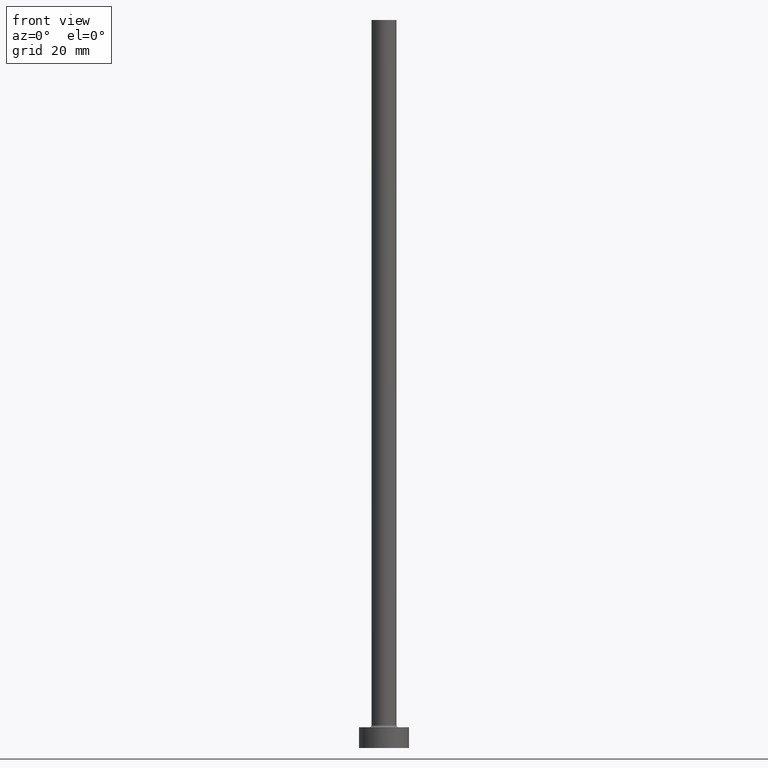
[diagram: clean part render]
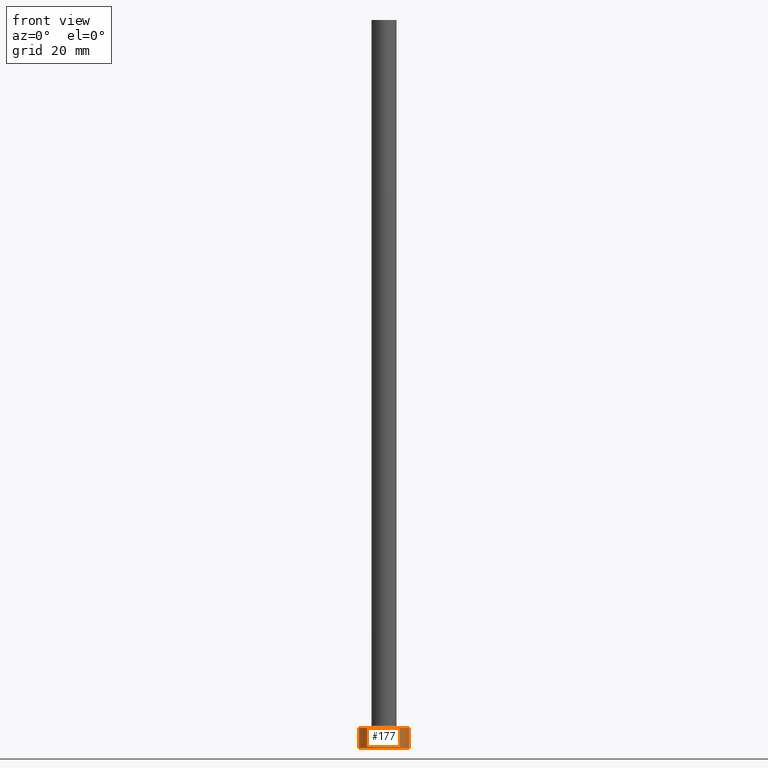
[diagram: same view with one face highlighted and labeled with its STEP entity id]
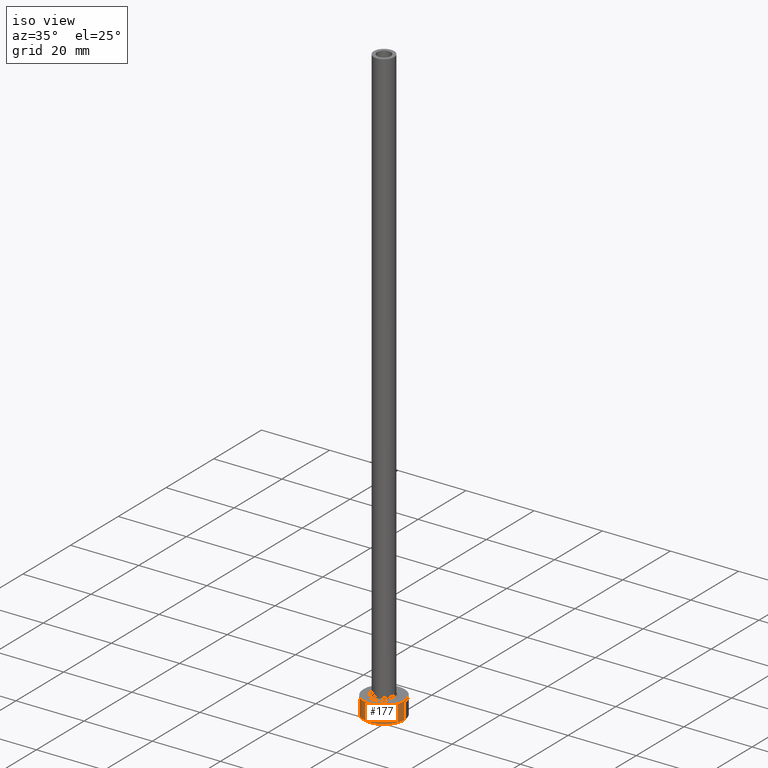
[diagram: same view with one face highlighted and labeled with its STEP entity id]
A machine part, front view. The second image highlights one B-rep face of the part: STEP entity #177.
A second angle (iso view) of the same face is appended — the face is thin or edge-on in the first view.
In plain terms, the highlighted cylindrical surface (edge-blend (fillet) strip) has radius 6 mm, axis along (-0, -0, -1).
Its self-contained STEP definition (entity closure, byte-faithful):
#6 = CIRCLE ( 'NONE', #447, 6.000000000000000888 ) ;
#8 = DIRECTION ( 'NONE',  ( 1.000000000000000000, 0.000000000000000000, 0.000000000000000000 ) ) ;
#15 = CARTESIAN_POINT ( 'NONE',  ( 6.000000000000000888, 7.347880794884120722E-16, 5.000000000000000000 ) ) ;
#17 = CARTESIAN_POINT ( 'NONE',  ( 0.000000000000000000, 0.000000000000000000, 5.000000000000000000 ) ) ;
#19 = DIRECTION ( 'NONE',  ( -0.000000000000000000, -0.000000000000000000, -1.000000000000000000 ) ) ;
#21 = DIRECTION ( 'NONE',  ( 1.000000000000000000, 0.000000000000000000, 0.000000000000000000 ) ) ;
#27 = CYLINDRICAL_SURFACE ( 'NONE', #221, 6.000000000000000888 ) ;
#45 = EDGE_CURVE ( 'NONE', #380, #344, #342, .T. ) ;
#47 = AXIS2_PLACEMENT_3D ( 'NONE', #414, #403, #8 ) ;
#53 = LINE ( 'NONE', #128, #400 ) ;
#55 = ORIENTED_EDGE ( 'NONE', *, *, #325, .F. ) ;
#106 = EDGE_CURVE ( 'NONE', #133, #416, #6, .T. ) ;
#128 = CARTESIAN_POINT ( 'NONE',  ( -6.000000000000000888, 0.000000000000000000, 5.000000000000000000 ) ) ;
#133 = VERTEX_POINT ( 'NONE', #277 ) ;
#141 = CARTESIAN_POINT ( 'NONE',  ( 0.000000000000000000, 0.000000000000000000, 5.000000000000000000 ) ) ;
#163 = LINE ( 'NONE', #15, #197 ) ;
#172 = DIRECTION ( 'NONE',  ( -0.000000000000000000, -0.000000000000000000, -1.000000000000000000 ) ) ;
#177 = ADVANCED_FACE ( 'NONE', ( #393 ), #27, .T. ) ;
#197 = VECTOR ( 'NONE', #332, 1000.000000000000000 ) ;
#206 = DIRECTION ( 'NONE',  ( -1.000000000000000000, 0.000000000000000000, 0.000000000000000000 ) ) ;
#221 = AXIS2_PLACEMENT_3D ( 'NONE', #141, #172, #206 ) ;
#231 = CARTESIAN_POINT ( 'NONE',  ( -6.000000000000000888, 0.000000000000000000, 0.000000000000000000 ) ) ;
#264 = EDGE_CURVE ( 'NONE', #133, #380, #53, .T. ) ;
#277 = CARTESIAN_POINT ( 'NONE',  ( -6.000000000000000888, 0.000000000000000000, 5.000000000000000000 ) ) ;
#294 = ORIENTED_EDGE ( 'NONE', *, *, #264, .T. ) ;
#306 = CARTESIAN_POINT ( 'NONE',  ( 6.000000000000000888, 7.347880794884120722E-16, 0.000000000000000000 ) ) ;
#315 = ORIENTED_EDGE ( 'NONE', *, *, #106, .F. ) ;
#325 = EDGE_CURVE ( 'NONE', #416, #344, #163, .T. ) ;
#332 = DIRECTION ( 'NONE',  ( -0.000000000000000000, -0.000000000000000000, -1.000000000000000000 ) ) ;
#342 = CIRCLE ( 'NONE', #47, 6.000000000000000888 ) ;
#344 = VERTEX_POINT ( 'NONE', #306 ) ;
#380 = VERTEX_POINT ( 'NONE', #231 ) ;
#393 = FACE_OUTER_BOUND ( 'NONE', #451, .T. ) ;
#400 = VECTOR ( 'NONE', #19, 1000.000000000000000 ) ;
#403 = DIRECTION ( 'NONE',  ( 0.000000000000000000, 0.000000000000000000, 1.000000000000000000 ) ) ;
#414 = CARTESIAN_POINT ( 'NONE',  ( 0.000000000000000000, 0.000000000000000000, 0.000000000000000000 ) ) ;
#416 = VERTEX_POINT ( 'NONE', #421 ) ;
#421 = CARTESIAN_POINT ( 'NONE',  ( 6.000000000000000888, 7.347880794884120722E-16, 5.000000000000000000 ) ) ;
#436 = ORIENTED_EDGE ( 'NONE', *, *, #45, .T. ) ;
#446 = DIRECTION ( 'NONE',  ( 0.000000000000000000, 0.000000000000000000, 1.000000000000000000 ) ) ;
#447 = AXIS2_PLACEMENT_3D ( 'NONE', #17, #446, #21 ) ;
#451 = EDGE_LOOP ( 'NONE', ( #55, #315, #294, #436 ) ) ;